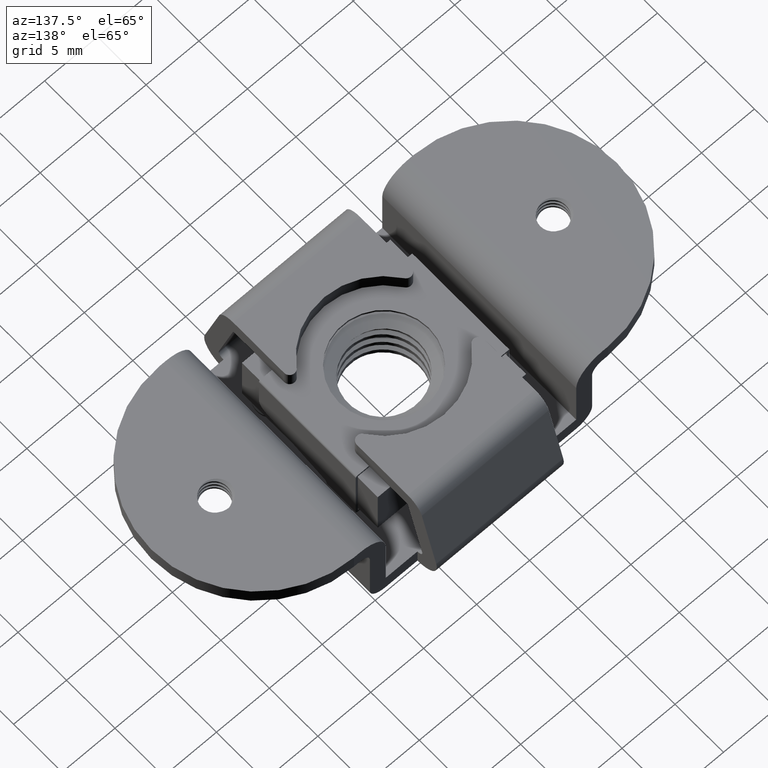
[diagram: clean part render]
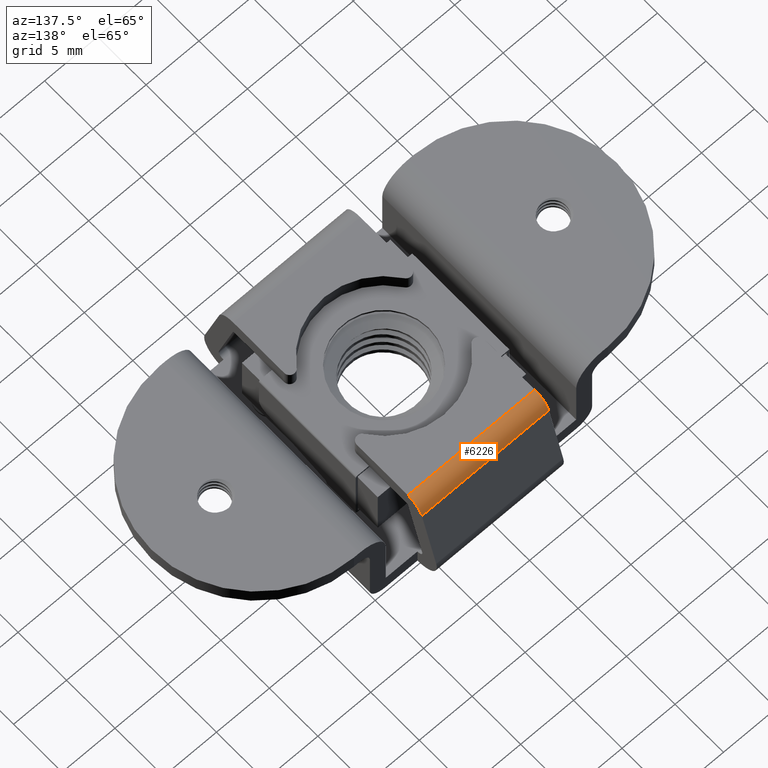
[diagram: same view with one face highlighted and labeled with its STEP entity id]
A machine part, auxiliary view. The second image highlights one B-rep face of the part: STEP entity #6226.
In plain terms, the highlighted cylindrical surface (edge-blend (fillet) strip) has radius 1.5 mm, axis along (-1, 0, 0).
Its self-contained STEP definition (entity closure, byte-faithful):
#499 = CARTESIAN_POINT ( 'NONE',  ( 7.199999999999880300, 9.000000000006968600, 7.699999999988920200 ) ) ;
#551 = LINE ( 'NONE', #3719, #1793 ) ;
#983 = CIRCLE ( 'NONE', #5274, 1.500000000000066400 ) ;
#1012 = EDGE_CURVE ( 'NONE', #2838, #6481, #983, .T. ) ;
#1616 = DIRECTION ( 'NONE',  ( -1.000000000000000000, 0.0000000000000000000, 0.0000000000000000000 ) ) ;
#1793 = VECTOR ( 'NONE', #1616, 1000.000000000000000 ) ;
#1943 = CARTESIAN_POINT ( 'NONE',  ( 5.999999999999889900, 9.000000000006988200, 9.199999999988991200 ) ) ;
#1970 = CARTESIAN_POINT ( 'NONE',  ( -6.000000000000000000, 9.000000000006979300, 7.699999999988920200 ) ) ;
#2296 = CARTESIAN_POINT ( 'NONE',  ( -6.000000000000000000, 10.44951599715470000, 8.085879999487529400 ) ) ;
#2298 = CIRCLE ( 'NONE', #3569, 1.500000000000066400 ) ;
#2431 = EDGE_LOOP ( 'NONE', ( #2777, #5327, #3289, #4382 ) ) ;
#2445 = CARTESIAN_POINT ( 'NONE',  ( 5.999999999999889900, 9.000000000006979300, 7.699999999988920200 ) ) ;
#2508 = DIRECTION ( 'NONE',  ( 0.0000000000000000000, 0.9663439980984387400, 0.2572533329990591700 ) ) ;
#2777 = ORIENTED_EDGE ( 'NONE', *, *, #3725, .T. ) ;
#2828 = EDGE_CURVE ( 'NONE', #6481, #5801, #551, .T. ) ;
#2838 = VERTEX_POINT ( 'NONE', #4234 ) ;
#2982 = DIRECTION ( 'NONE',  ( 0.0000000000000000000, 0.9663439980984387400, 0.2572533329990591700 ) ) ;
#3006 = CARTESIAN_POINT ( 'NONE',  ( -6.000000000000000000, 9.000000000006988200, 9.199999999988991200 ) ) ;
#3129 = DIRECTION ( 'NONE',  ( -1.000000000000000000, 1.752508004661155000E-017, 2.280085077679279700E-017 ) ) ;
#3289 = ORIENTED_EDGE ( 'NONE', *, *, #1012, .F. ) ;
#3569 = AXIS2_PLACEMENT_3D ( 'NONE', #1970, #5661, #2508 ) ;
#3617 = VECTOR ( 'NONE', #5699, 1000.000000000000000 ) ;
#3719 = CARTESIAN_POINT ( 'NONE',  ( 5.999999999999889900, 9.000000000006988200, 9.199999999988991200 ) ) ;
#3725 = EDGE_CURVE ( 'NONE', #5669, #5801, #2298, .T. ) ;
#3852 = FACE_OUTER_BOUND ( 'NONE', #2431, .T. ) ;
#4098 = CARTESIAN_POINT ( 'NONE',  ( 5.999999999999889900, 10.44951599715470000, 8.085879999487529400 ) ) ;
#4234 = CARTESIAN_POINT ( 'NONE',  ( 5.999999999999889900, 10.44951599715470000, 8.085879999487529400 ) ) ;
#4382 = ORIENTED_EDGE ( 'NONE', *, *, #6729, .T. ) ;
#4727 = AXIS2_PLACEMENT_3D ( 'NONE', #499, #3129, #6277 ) ;
#5009 = LINE ( 'NONE', #4098, #3617 ) ;
#5102 = CYLINDRICAL_SURFACE ( 'NONE', #4727, 1.500000000000074200 ) ;
#5274 = AXIS2_PLACEMENT_3D ( 'NONE', #2445, #6124, #2982 ) ;
#5327 = ORIENTED_EDGE ( 'NONE', *, *, #2828, .F. ) ;
#5661 = DIRECTION ( 'NONE',  ( 1.000000000000000000, -6.248915020003189000E-017, 2.347336554908440000E-016 ) ) ;
#5669 = VERTEX_POINT ( 'NONE', #2296 ) ;
#5699 = DIRECTION ( 'NONE',  ( -1.000000000000000000, 0.0000000000000000000, 0.0000000000000000000 ) ) ;
#5801 = VERTEX_POINT ( 'NONE', #3006 ) ;
#6124 = DIRECTION ( 'NONE',  ( 1.000000000000000000, 6.248915020003189000E-017, -2.347336554908440000E-016 ) ) ;
#6226 = ADVANCED_FACE ( 'NONE', ( #3852 ), #5102, .T. ) ;
#6277 = DIRECTION ( 'NONE',  ( 0.0000000000000000000, 1.387778780781377000E-014, 1.000000000000000000 ) ) ;
#6481 = VERTEX_POINT ( 'NONE', #1943 ) ;
#6729 = EDGE_CURVE ( 'NONE', #2838, #5669, #5009, .T. ) ;